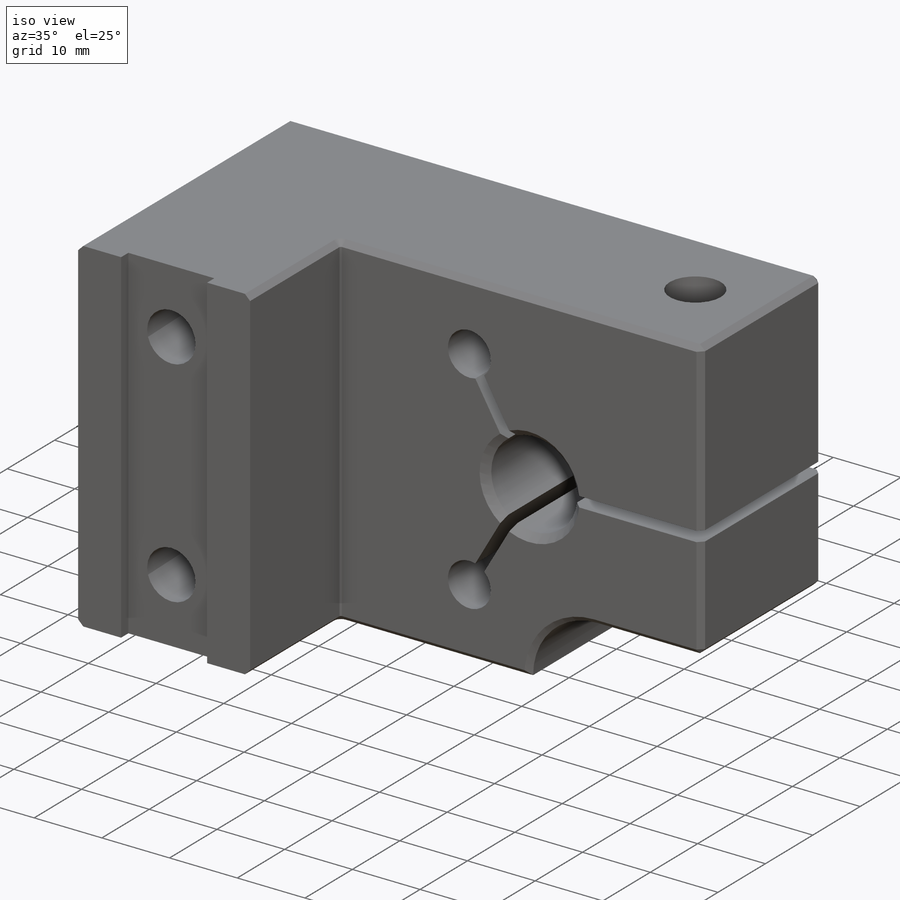
[diagram: iso view]
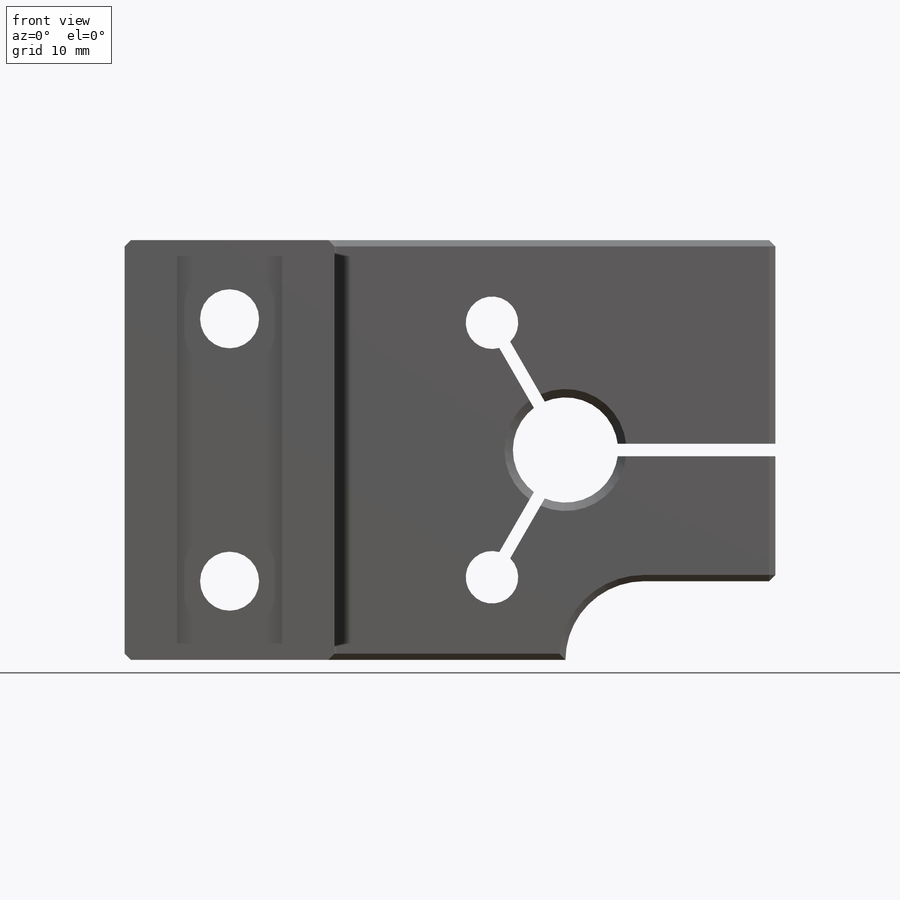
[diagram: front view]
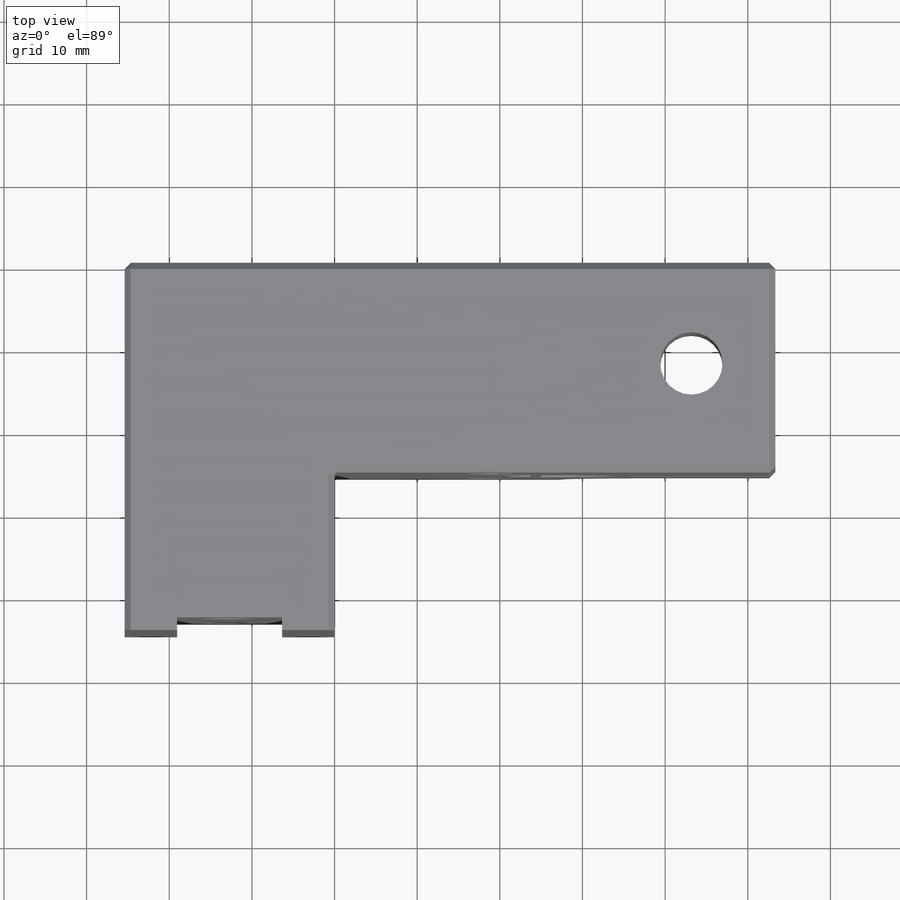
[diagram: top view]
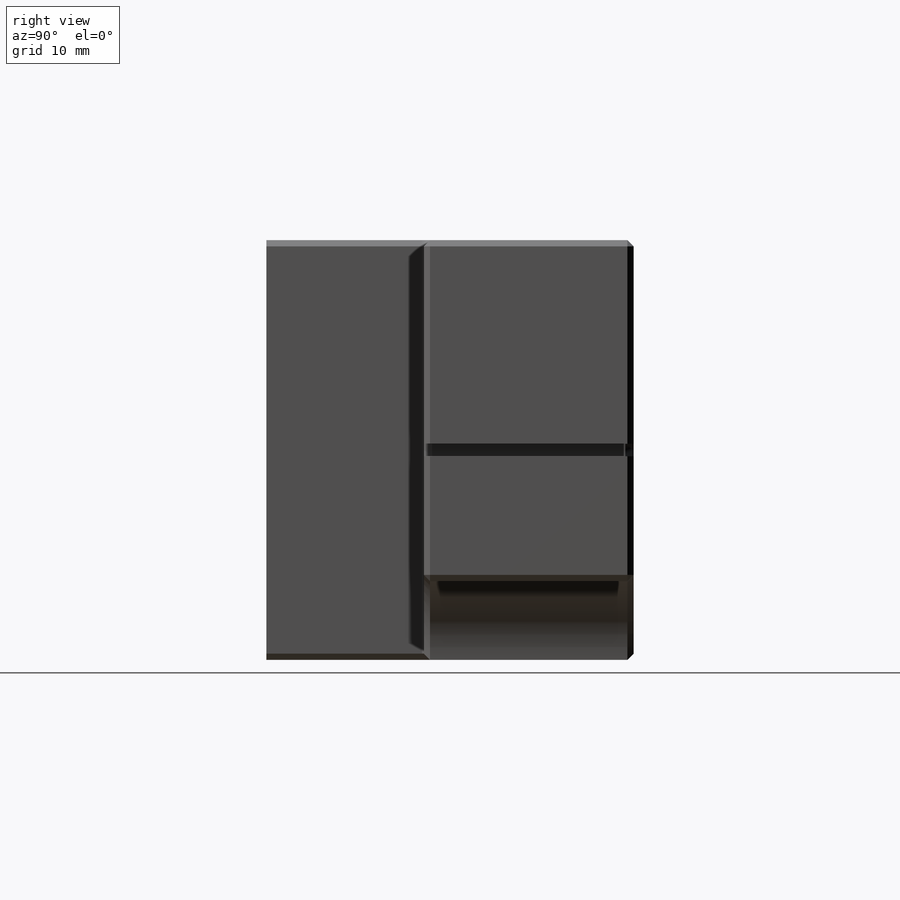
[diagram: right view]
SOLIDWORKS PART (.sldprt)
format: sldprt  version: not decoded by parser v0  size: 844,800 bytes
history: native  units: mm
features: sketch x12, extrude x3, hole x3, cut_extrude x3, fillet x2, chamfer x2, material x1 (+14 scaffold rows collapsed)
feature tree (40):
  scaffold x14  (default folders/planes/origin — collapsed)
  material  "6061-T6 Al"
  sketch  "Sketch1"  dims[c1.D1=210.82mm c1.D2=88.9mm c1.D3=8.89mm c1.D4=2.54mm c2.D1=50.8mm]
  extrude  "Extrude1"  Depth=25.4mm
  sketch  "Sketch22"
  extrude  "Extrude7"  Depth=50.8mm
  sketch  "Sketch33"  dims[c1.D1=50.8mm c1.D2=~49.328103mm c2.D1=44.45mm]
  extrude  "Extrude10"  Depth=25.4mm
  hole  "CBORE for 1/4 Socket Head Cap Screw1"  Diameter=7.14248mm Depth=44.450025mm
  sketch  "Sketch35"  dims[c1.D1=31.75mm c1.D2=15.875mm c1.D3=12.7mm c2.D2=15.875mm]
  sketch  "Sketch34"  dims[hole-wizard template sketch: 42 standard entries collapsed; hole parameters kept: c12.Thru Hole Depth=~44.450025mm c12.C'Bore Dia.=11.1125mm c12.C'Bore Depth=6.35mm c12.Near C'Sink Dia.=12.3825mm c12.D6=~4.399409mm c12.Near C'Sink Angle=90.0deg c12.Far C'Sink Dia.=~8.41248mm c12.D8=~2.963249mm c12.Far C'Sink Angle=90.0deg]
  sketch  "Sketch51"  dims[c1.D1=~12.005892mm c1.D2=~22.812816mm c2.D1=25.4mm c2.D2=9.525mm]
  cut_extrude  "Extrude18"  [1 undecoded]
  fillet  "Fillet6"  Radius=9.525mm
  sketch  "Sketch43"  dims[c1.D1=12.7254mm c1.D6=6.35mm c2.D1=~0.743033mm c2.D2=53.34mm c2.D3=~35.913952mm c3.D3=120.0deg c3.D4=~35.913952mm c4.D4=120.0deg c4.D5=17.78mm c4.D9=27.94mm c4.D2=25.4mm c4.D10=27.94mm c4.D7=0.762mm c4.D8=0.762mm]
  cut_extrude  "Extrude16"  [1 undecoded]
  hole  "19/64 (0.29688) Diameter Hole1"  Diameter=7.540752mm Depth=24.638mm
  sketch  "Sketch45"  dims[c1.D1=10.16mm c1.D2=43.18mm c2.D1=43.18mm c2.D2=12.192mm]
  sketch  "Sketch44"  dims[hole-wizard template sketch: 59 standard entries collapsed; hole parameters kept: c18.Thru Hole Dia.=~7.540752mm c18.Thru Hole Depth=24.638mm]
  hole  "Tapped Hole for 1/4-20 Helicoil1"  Diameter=6.7564mm Depth=41.27505mm
  sketch  "Sketch47"
  sketch  "Sketch46"  dims[hole-wizard template sketch: 42 standard entries collapsed; hole parameters kept: c12.Thru Tap Drill Depth=~41.27505mm c12.Thread Major Dia.=~8.09498mm c12.Thread Depth=15.748mm]
  sketch  "Sketch50"  dims[c1.D1=50.8mm c1.D2=~12.37007mm c2.D1=12.7mm c2.D2=6.35mm]
  cut_extrude  "Extrude17"  Depth=1.524mm
  chamfer  "Chamfer7"  Distance=1.016mm Angle=45deg
  fillet  "Fillet5"  Radius=0.254mm
  chamfer  "Chamfer6"  Distance=0.762mm Angle=45deg
decode coverage: 21 of 25 modeling features carry decoded parameters
note: ~ marks probable driven/reference dimensions
note: 2 parameter values undecoded
note: suppression state not decoded; provenance and decode notes live in map.json
